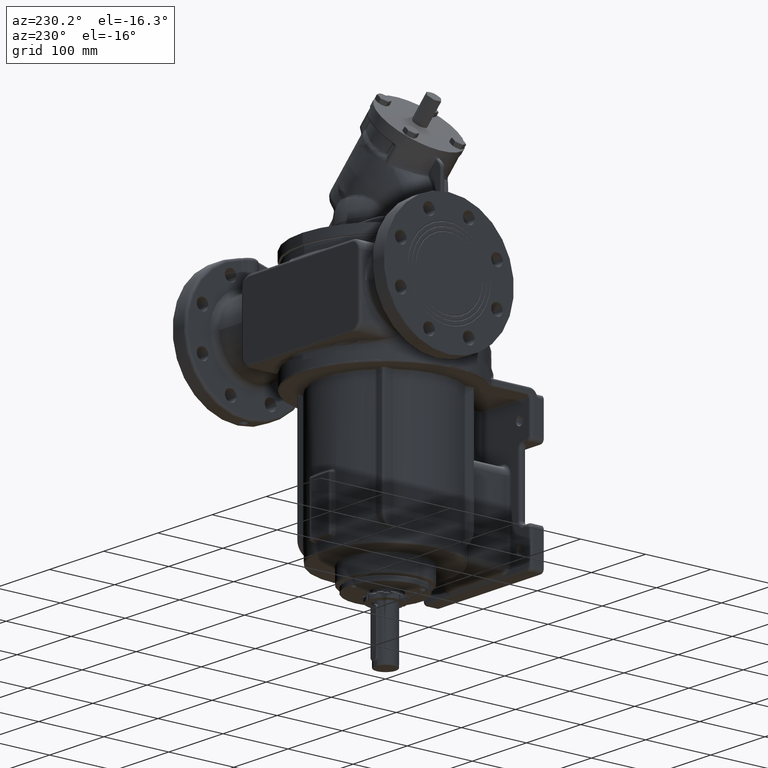
[diagram: clean part render]
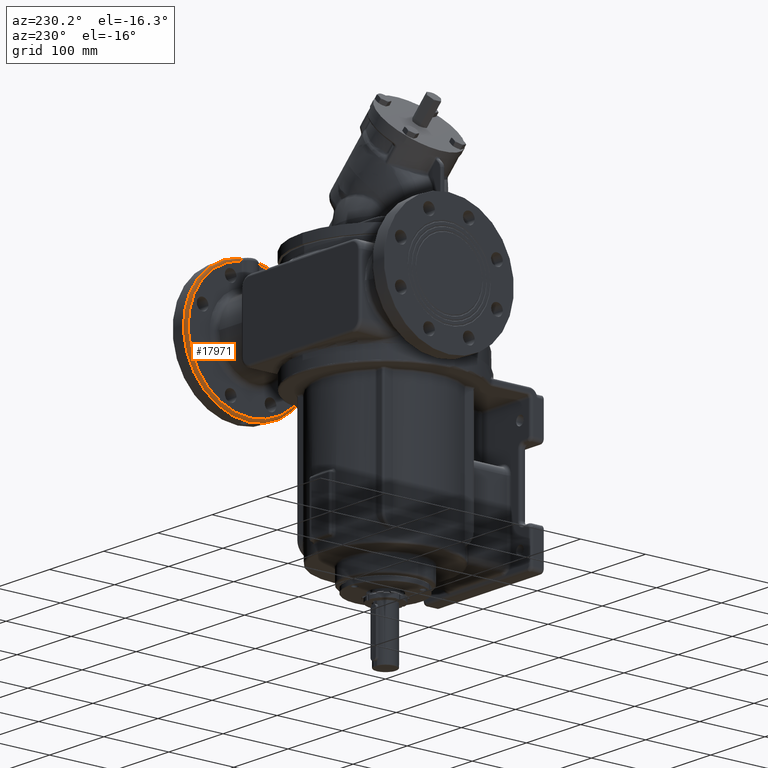
[diagram: same view with one face highlighted and labeled with its STEP entity id]
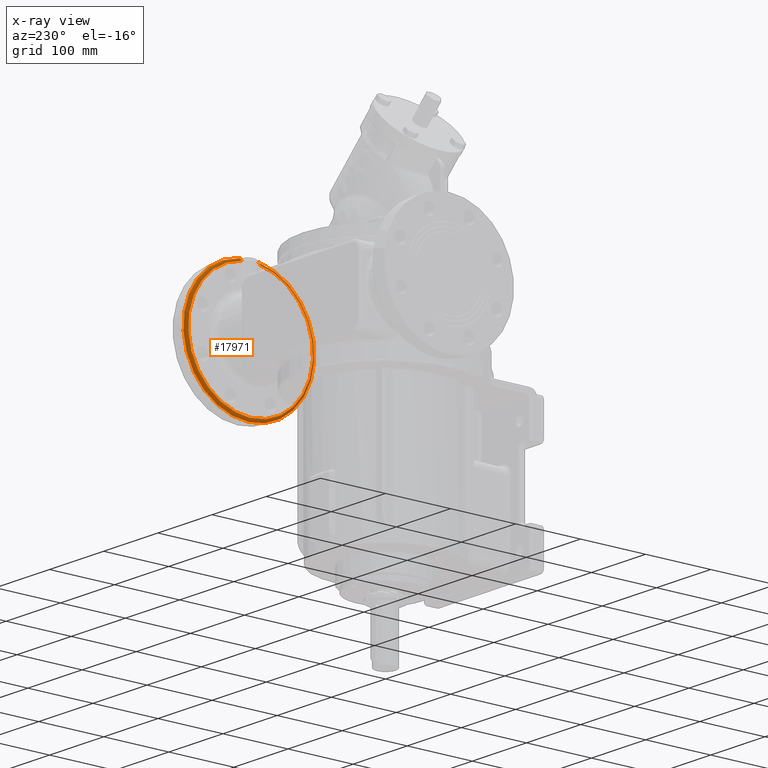
[diagram: x-ray of the same camera — body ghosted, the highlighted face saturated]
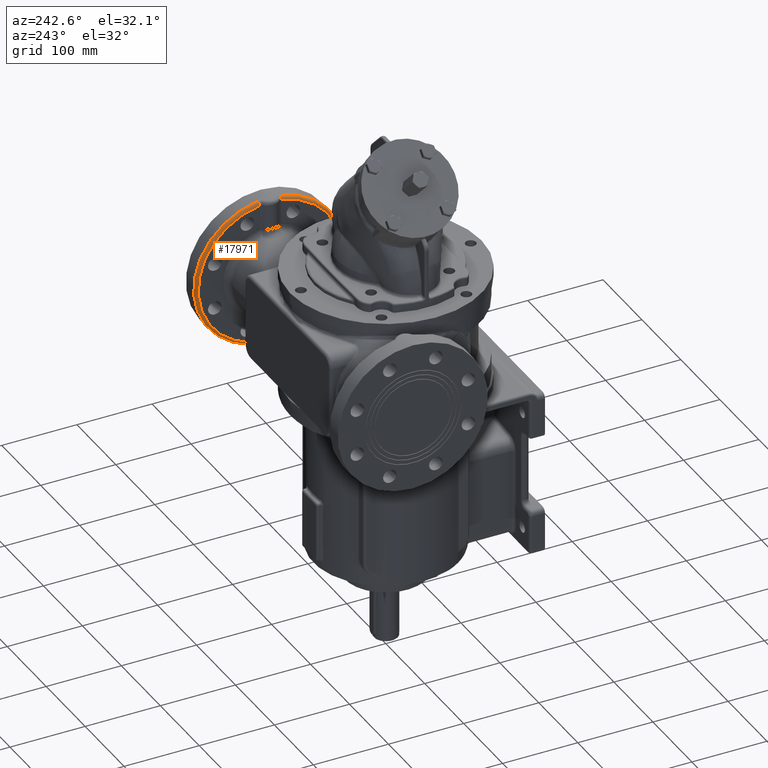
[diagram: same view with one face highlighted and labeled with its STEP entity id]
A machine part, auxiliary view. The second image highlights one B-rep face of the part: STEP entity #17971.
The next image is the same camera in x-ray: the body ghosted, the highlighted face saturated — about 15% of this face is hidden behind the body in this view.
A second angle (auxiliary view) of the same face is appended — the face is thin or edge-on in the first view.
In plain terms, the highlighted toroidal blend (fillet) surface has major radius 96 mm and minor (blend) radius 4 mm.
Its self-contained STEP definition (entity closure, byte-faithful):
#313=CARTESIAN_POINT('',(1.75E2,6.5E1,7.6E1));
#314=DIRECTION('',(-1.E0,0.E0,0.E0));
#315=DIRECTION('',(0.E0,0.E0,-1.E0));
#316=AXIS2_PLACEMENT_3D('',#313,#314,#315);
#542=CARTESIAN_POINT('',(1.75E2,7.984146546748E1,1.748925219760E2));
#544=CARTESIAN_POINT('',(1.75E2,6.5E1,7.6E1));
#545=DIRECTION('',(-1.E0,0.E0,0.E0));
#546=DIRECTION('',(0.E0,1.484146546747E-1,9.889252197602E-1));
#547=AXIS2_PLACEMENT_3D('',#544,#545,#546);
#710=CARTESIAN_POINT('',(1.75E2,5.075219315326E1,1.709368210973E2));
#711=DIRECTION('',(-2.519461938554E-10,9.889252197634E-1,1.484146546535E-1));
#712=DIRECTION('',(-1.E0,-2.491553630080E-10,-3.738875875570E-11));
#713=AXIS2_PLACEMENT_3D('',#710,#711,#712);
#715=CARTESIAN_POINT('',(1.71E2,5.075219315122E1,1.709368210970E2));
#833=CARTESIAN_POINT('',(1.71E2,6.5E1,7.6E1));
#834=DIRECTION('',(-1.E0,0.E0,0.E0));
#835=DIRECTION('',(0.E0,1.484146546747E-1,9.889252197602E-1));
#836=AXIS2_PLACEMENT_3D('',#833,#834,#835);
#838=CARTESIAN_POINT('',(1.75E2,7.924780684877E1,1.709368210970E2));
#839=DIRECTION('',(0.E0,9.889252197602E-1,-1.484146546747E-1));
#840=DIRECTION('',(-1.E0,0.E0,0.E0));
#841=AXIS2_PLACEMENT_3D('',#838,#839,#840);
#871=CARTESIAN_POINT('',(1.71E2,7.924780684878E1,1.709368210970E2));
#16553=CARTESIAN_POINT('',(1.75E2,6.5E1,-2.4E1));
#16554=CARTESIAN_POINT('',(1.75E2,5.015853453253E1,1.748925219760E2));
#16555=VERTEX_POINT('',#16553);
#16556=VERTEX_POINT('',#16554);
#16557=VERTEX_POINT('',#715);
#16564=VERTEX_POINT('',#871);
#16565=VERTEX_POINT('',#542);
#17958=CARTESIAN_POINT('',(1.75E2,6.5E1,7.6E1));
#17959=DIRECTION('',(-1.E0,0.E0,0.E0));
#17960=DIRECTION('',(0.E0,-1.431519108656E-1,9.897007277028E-1));
#17961=AXIS2_PLACEMENT_3D('',#17958,#17959,#17960);
#17962=TOROIDAL_SURFACE('',#17961,9.6E1,4.E0);
#17963=ORIENTED_EDGE('',*,*,#17900,.T.);
#17964=ORIENTED_EDGE('',*,*,#17876,.T.);
#17965=ORIENTED_EDGE('',*,*,#17553,.F.);
#17966=ORIENTED_EDGE('',*,*,#17612,.F.);
#17968=ORIENTED_EDGE('',*,*,#17967,.F.);
#17969=EDGE_LOOP('',(#17963,#17964,#17965,#17966,#17968));
#17970=FACE_OUTER_BOUND('',#17969,.F.);
#17971=ADVANCED_FACE('',(#17970),#17962,.T.);
#317=CIRCLE('',#316,1.E2);
#548=CIRCLE('',#547,1.E2);
#714=CIRCLE('',#713,4.E0);
#837=CIRCLE('',#836,9.6E1);
#842=CIRCLE('',#841,4.E0);
#17553=EDGE_CURVE('',#16555,#16556,#317,.T.);
#17612=EDGE_CURVE('',#16565,#16555,#548,.T.);
#17876=EDGE_CURVE('',#16557,#16556,#714,.T.);
#17900=EDGE_CURVE('',#16564,#16557,#837,.T.);
#17967=EDGE_CURVE('',#16564,#16565,#842,.T.);